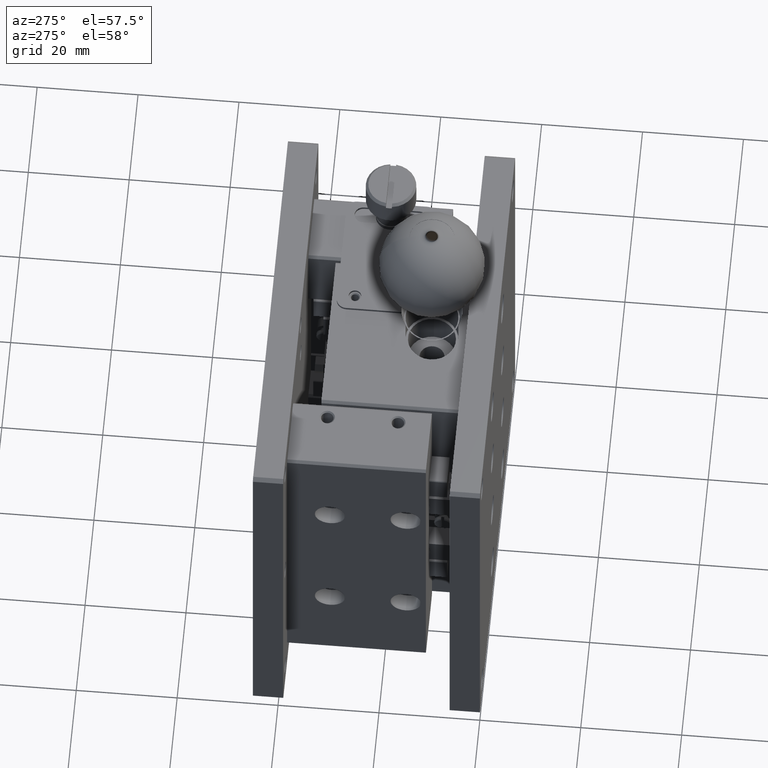
[diagram: clean part render]
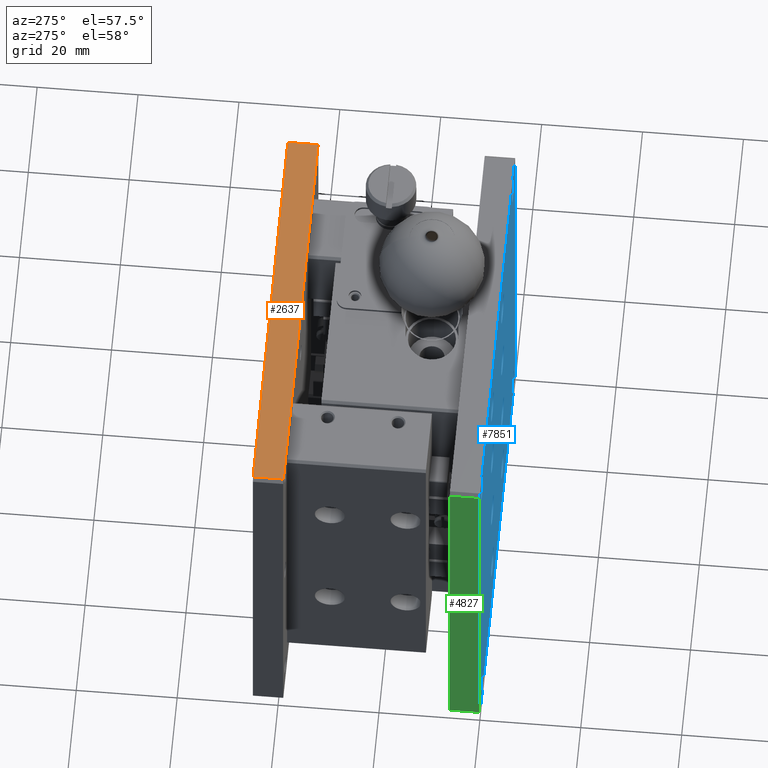
[diagram: same view with three faces highlighted in distinct colors, each labeled with its STEP entity id]
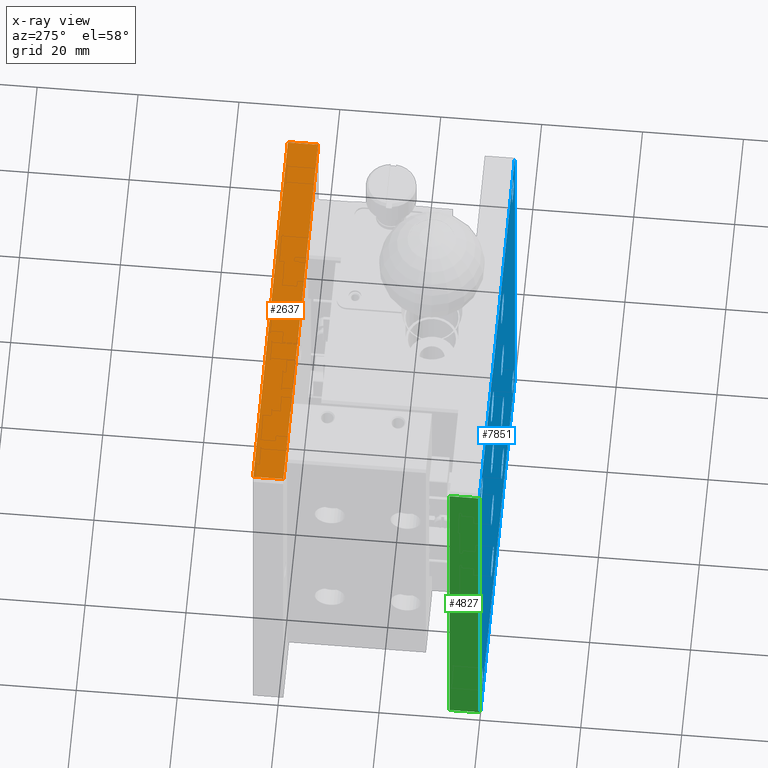
[diagram: x-ray of the same camera — body ghosted, the three highlighted faces saturated]
A machine part, auxiliary view with three faces highlighted in distinct colors.
The next image is the same camera in x-ray (body ghosted, the three faces saturated) — at least one of them is partly hidden behind the body in this view.
Their STEP definitions:

[orange] entity #2637 — the highlighted planar face has unit normal (0, 0, 1).
#125 = DIRECTION ( 'NONE',  ( -0.000000000000000000, 1.000000000000000000, 0.000000000000000000 ) ) ;
#212 = VECTOR ( 'NONE', #125, 1000.000000000000000 ) ;
#609 = VERTEX_POINT ( 'NONE', #3473 ) ;
#788 = AXIS2_PLACEMENT_3D ( 'NONE', #9421, #4760, #13947 ) ;
#954 = CARTESIAN_POINT ( 'NONE',  ( 0.7099999999999999645, 39.00000000000000000, 0.000000000000000000 ) ) ;
#1374 = CARTESIAN_POINT ( 'NONE',  ( 79.29000000000002046, 45.00000000000000000, -8.673617379884033500E-16 ) ) ;
#1547 = DIRECTION ( 'NONE',  ( 1.000000000000000000, 0.000000000000000000, -0.000000000000000000 ) ) ;
#2431 = EDGE_CURVE ( 'NONE', #13523, #13399, #7877, .T. ) ;
#2637 = ADVANCED_FACE ( 'NONE', ( #6156 ), #3921, .T. ) ;
#3473 = CARTESIAN_POINT ( 'NONE',  ( 79.29000000000002046, 39.00000000000000000, -1.734723475976806700E-15 ) ) ;
#3795 = LINE ( 'NONE', #7262, #5129 ) ;
#3921 = PLANE ( 'NONE',  #788 ) ;
#4760 = DIRECTION ( 'NONE',  ( 0.000000000000000000, 0.000000000000000000, 1.000000000000000000 ) ) ;
#5129 = VECTOR ( 'NONE', #1547, 1000.000000000000000 ) ;
#6156 = FACE_OUTER_BOUND ( 'NONE', #7513, .T. ) ;
#6431 = EDGE_CURVE ( 'NONE', #13399, #609, #6898, .T. ) ;
#6543 = EDGE_CURVE ( 'NONE', #609, #7089, #9941, .T. ) ;
#6898 = LINE ( 'NONE', #954, #7322 ) ;
#7089 = VERTEX_POINT ( 'NONE', #1374 ) ;
#7262 = CARTESIAN_POINT ( 'NONE',  ( 0.000000000000000000, 45.00000000000000000, 0.000000000000000000 ) ) ;
#7322 = VECTOR ( 'NONE', #12539, 1000.000000000000000 ) ;
#7513 = EDGE_LOOP ( 'NONE', ( #7957, #10814, #10708, #14134 ) ) ;
#7877 = LINE ( 'NONE', #13732, #10032 ) ;
#7957 = ORIENTED_EDGE ( 'NONE', *, *, #6431, .T. ) ;
#9421 = CARTESIAN_POINT ( 'NONE',  ( 0.7099999999999999645, 39.00000000000000000, 0.000000000000000000 ) ) ;
#9941 = LINE ( 'NONE', #14485, #212 ) ;
#10032 = VECTOR ( 'NONE', #14714, 1000.000000000000000 ) ;
#10221 = CARTESIAN_POINT ( 'NONE',  ( 0.7099999999999999645, 45.00000000000000000, 0.000000000000000000 ) ) ;
#10708 = ORIENTED_EDGE ( 'NONE', *, *, #11641, .F. ) ;
#10814 = ORIENTED_EDGE ( 'NONE', *, *, #6543, .T. ) ;
#10815 = CARTESIAN_POINT ( 'NONE',  ( 0.7099999999999999645, 39.00000000000000000, 0.000000000000000000 ) ) ;
#11641 = EDGE_CURVE ( 'NONE', #13523, #7089, #3795, .T. ) ;
#12539 = DIRECTION ( 'NONE',  ( 1.000000000000000000, 0.000000000000000000, -0.000000000000000000 ) ) ;
#13399 = VERTEX_POINT ( 'NONE', #10815 ) ;
#13523 = VERTEX_POINT ( 'NONE', #10221 ) ;
#13732 = CARTESIAN_POINT ( 'NONE',  ( 0.7099999999999999645, 39.00000000000000000, 0.000000000000000000 ) ) ;
#13947 = DIRECTION ( 'NONE',  ( 1.000000000000000000, 0.000000000000000000, -0.000000000000000000 ) ) ;
#14134 = ORIENTED_EDGE ( 'NONE', *, *, #2431, .T. ) ;
#14485 = CARTESIAN_POINT ( 'NONE',  ( 79.29000000000000625, 39.00000000000000000, 0.000000000000000000 ) ) ;
#14714 = DIRECTION ( 'NONE',  ( 0.000000000000000000, -1.000000000000000000, -0.000000000000000000 ) ) ;

[blue] entity #7851 — the highlighted planar face has unit normal (0, 1, 0).
#31 = CARTESIAN_POINT ( 'NONE',  ( 5.000000000000000000, 0.000000000000000000, -75.00000000000000000 ) ) ;
#76 = VERTEX_POINT ( 'NONE', #8025 ) ;
#80 = FACE_BOUND ( 'NONE', #5642, .T. ) ;
#112 = CARTESIAN_POINT ( 'NONE',  ( 80.00000000000001421, -1.951563910473907981E-15, -79.29000000000000625 ) ) ;
#155 = DIRECTION ( 'NONE',  ( 0.000000000000000000, 0.000000000000000000, -1.000000000000000000 ) ) ;
#244 = CARTESIAN_POINT ( 'NONE',  ( 28.50000000000000000, 0.000000000000000000, -11.50000000000000000 ) ) ;
#256 = EDGE_LOOP ( 'NONE', ( #12652, #12485, #8798, #14278, #14574, #9048, #13954, #5961 ) ) ;
#297 = CIRCLE ( 'NONE', #11677, 2.250000000000001776 ) ;
#410 = CARTESIAN_POINT ( 'NONE',  ( 5.000000000000000000, 0.000000000000000000, -7.250000000000009770 ) ) ;
#489 = ORIENTED_EDGE ( 'NONE', *, *, #11950, .F. ) ;
#500 = AXIS2_PLACEMENT_3D ( 'NONE', #6449, #3256, #10976 ) ;
#590 = VERTEX_POINT ( 'NONE', #3061 ) ;
#667 = CARTESIAN_POINT ( 'NONE',  ( 28.50000000000000000, 0.000000000000000000, -14.49999999999999822 ) ) ;
#711 = AXIS2_PLACEMENT_3D ( 'NONE', #1116, #10184, #10396 ) ;
#857 = AXIS2_PLACEMENT_3D ( 'NONE', #1249, #2289, #6899 ) ;
#958 = VERTEX_POINT ( 'NONE', #10110 ) ;
#1079 = CARTESIAN_POINT ( 'NONE',  ( 5.000000000000000000, 0.000000000000000000, -5.000000000000009770 ) ) ;
#1116 = CARTESIAN_POINT ( 'NONE',  ( 0.000000000000000000, 0.000000000000000000, 0.000000000000000000 ) ) ;
#1200 = FACE_BOUND ( 'NONE', #3944, .T. ) ;
#1234 = AXIS2_PLACEMENT_3D ( 'NONE', #14615, #2954, #13496 ) ;
#1249 = CARTESIAN_POINT ( 'NONE',  ( 28.50000000000000000, 0.000000000000000000, -49.50000000000000000 ) ) ;
#1330 = EDGE_CURVE ( 'NONE', #3357, #3357, #297, .T. ) ;
#1333 = FACE_BOUND ( 'NONE', #14443, .T. ) ;
#1416 = ORIENTED_EDGE ( 'NONE', *, *, #13542, .F. ) ;
#1786 = VERTEX_POINT ( 'NONE', #5416 ) ;
#1898 = LINE ( 'NONE', #4207, #4032 ) ;
#2119 = EDGE_LOOP ( 'NONE', ( #10125 ) ) ;
#2125 = ORIENTED_EDGE ( 'NONE', *, *, #3342, .F. ) ;
#2240 = FACE_OUTER_BOUND ( 'NONE', #256, .T. ) ;
#2289 = DIRECTION ( 'NONE',  ( 0.000000000000000000, -1.000000000000000000, 0.000000000000000000 ) ) ;
#2322 = CARTESIAN_POINT ( 'NONE',  ( 51.50000000000000711, 0.000000000000000000, -71.50000000000001421 ) ) ;
#2457 = FACE_BOUND ( 'NONE', #12326, .T. ) ;
#2592 = CIRCLE ( 'NONE', #9944, 2.250000000000000444 ) ;
#2772 = VERTEX_POINT ( 'NONE', #5189 ) ;
#2954 = DIRECTION ( 'NONE',  ( 0.000000000000000000, -1.000000000000000000, 0.000000000000000000 ) ) ;
#3061 = CARTESIAN_POINT ( 'NONE',  ( 28.50000000000000000, 0.000000000000000000, -52.50000000000000711 ) ) ;
#3179 = VECTOR ( 'NONE', #13330, 1000.000000000000000 ) ;
#3187 = DIRECTION ( 'NONE',  ( 0.000000000000000000, 0.000000000000000000, -1.000000000000000000 ) ) ;
#3256 = DIRECTION ( 'NONE',  ( 0.000000000000000000, -1.000000000000000000, 0.000000000000000000 ) ) ;
#3312 = CARTESIAN_POINT ( 'NONE',  ( 0.000000000000000000, 0.000000000000000000, 0.000000000000000000 ) ) ;
#3337 = AXIS2_PLACEMENT_3D ( 'NONE', #31, #13686, #8123 ) ;
#3342 = EDGE_CURVE ( 'NONE', #6164, #6164, #9921, .T. ) ;
#3357 = VERTEX_POINT ( 'NONE', #9137 ) ;
#3393 = CARTESIAN_POINT ( 'NONE',  ( 51.50000000000000711, 0.000000000000000000, -11.50000000000000000 ) ) ;
#3467 = DIRECTION ( 'NONE',  ( 0.000000000000000000, -1.000000000000000000, 0.000000000000000000 ) ) ;
#3567 = VECTOR ( 'NONE', #5543, 999.9999999999998863 ) ;
#3598 = VECTOR ( 'NONE', #8091, 1000.000000000000000 ) ;
#3675 = DIRECTION ( 'NONE',  ( 0.7071067811865500152, 0.000000000000000000, -0.7071067811865450192 ) ) ;
#3721 = FACE_BOUND ( 'NONE', #11971, .T. ) ;
#3805 = DIRECTION ( 'NONE',  ( -0.7071067811865505703, 0.000000000000000000, -0.7071067811865444641 ) ) ;
#3944 = EDGE_LOOP ( 'NONE', ( #12634 ) ) ;
#4032 = VECTOR ( 'NONE', #4138, 1000.000000000000114 ) ;
#4091 = ORIENTED_EDGE ( 'NONE', *, *, #7447, .F. ) ;
#4138 = DIRECTION ( 'NONE',  ( 0.7071067811865474617, 0.000000000000000000, 0.7071067811865474617 ) ) ;
#4170 = DIRECTION ( 'NONE',  ( 0.000000000000000000, 0.000000000000000000, -1.000000000000000000 ) ) ;
#4207 = CARTESIAN_POINT ( 'NONE',  ( 80.00000000000000000, -3.469446951953614189E-15, -79.29000000000000625 ) ) ;
#4423 = VERTEX_POINT ( 'NONE', #13613 ) ;
#4540 = CARTESIAN_POINT ( 'NONE',  ( 80.00000000000000000, 0.000000000000000000, 0.000000000000000000 ) ) ;
#4658 = CARTESIAN_POINT ( 'NONE',  ( 51.50000000000000711, 0.000000000000000000, -49.50000000000000000 ) ) ;
#4704 = VERTEX_POINT ( 'NONE', #2322 ) ;
#4729 = EDGE_LOOP ( 'NONE', ( #2125 ) ) ;
#4775 = CARTESIAN_POINT ( 'NONE',  ( 28.50000000000000000, 0.000000000000000000, -30.50000000000000000 ) ) ;
#4790 = DIRECTION ( 'NONE',  ( 0.000000000000000000, 0.000000000000000000, -1.000000000000000000 ) ) ;
#4957 = AXIS2_PLACEMENT_3D ( 'NONE', #4658, #13637, #14545 ) ;
#5189 = CARTESIAN_POINT ( 'NONE',  ( 79.29000000000002046, 0.000000000000000000, -8.673617379884033500E-16 ) ) ;
#5209 = LINE ( 'NONE', #9438, #9286 ) ;
#5416 = CARTESIAN_POINT ( 'NONE',  ( -1.897353801849632760E-16, 0.000000000000000000, -79.29000000000000625 ) ) ;
#5531 = CARTESIAN_POINT ( 'NONE',  ( 28.50000000000000000, 0.000000000000000000, -68.50000000000000000 ) ) ;
#5543 = DIRECTION ( 'NONE',  ( -0.7071067811865420216, 0.000000000000000000, 0.7071067811865531239 ) ) ;
#5585 = VERTEX_POINT ( 'NONE', #7730 ) ;
#5642 = EDGE_LOOP ( 'NONE', ( #9046 ) ) ;
#5661 = FACE_BOUND ( 'NONE', #14580, .T. ) ;
#5740 = VERTEX_POINT ( 'NONE', #8316 ) ;
#5874 = FACE_BOUND ( 'NONE', #7838, .T. ) ;
#5953 = CARTESIAN_POINT ( 'NONE',  ( 80.00000000000000000, 0.000000000000000000, -0.7099999999999998535 ) ) ;
#5961 = ORIENTED_EDGE ( 'NONE', *, *, #7044, .F. ) ;
#6164 = VERTEX_POINT ( 'NONE', #8603 ) ;
#6423 = VERTEX_POINT ( 'NONE', #10952 ) ;
#6449 = CARTESIAN_POINT ( 'NONE',  ( 75.00000000000000000, 0.000000000000000000, -5.000000000000000000 ) ) ;
#6481 = VERTEX_POINT ( 'NONE', #13365 ) ;
#6573 = VECTOR ( 'NONE', #3675, 1000.000000000000000 ) ;
#6593 = CIRCLE ( 'NONE', #8488, 3.000000000000002665 ) ;
#6767 = FACE_BOUND ( 'NONE', #4729, .T. ) ;
#6847 = EDGE_CURVE ( 'NONE', #8006, #8006, #2592, .T. ) ;
#6894 = VERTEX_POINT ( 'NONE', #13866 ) ;
#6899 = DIRECTION ( 'NONE',  ( 0.000000000000000000, 0.000000000000000000, -1.000000000000000000 ) ) ;
#6935 = EDGE_CURVE ( 'NONE', #6894, #6894, #8526, .T. ) ;
#7000 = CARTESIAN_POINT ( 'NONE',  ( 28.50000000000000000, 0.000000000000000000, -33.50000000000000000 ) ) ;
#7036 = VERTEX_POINT ( 'NONE', #112 ) ;
#7044 = EDGE_CURVE ( 'NONE', #1786, #7391, #10507, .T. ) ;
#7054 = PLANE ( 'NONE',  #711 ) ;
#7340 = EDGE_CURVE ( 'NONE', #11702, #2772, #11248, .T. ) ;
#7391 = VERTEX_POINT ( 'NONE', #11468 ) ;
#7447 = EDGE_CURVE ( 'NONE', #6423, #6423, #13524, .T. ) ;
#7730 = CARTESIAN_POINT ( 'NONE',  ( 51.50000000000000711, 0.000000000000000000, -52.50000000000000711 ) ) ;
#7740 = DIRECTION ( 'NONE',  ( -1.000000000000000000, -0.000000000000000000, 0.000000000000000000 ) ) ;
#7768 = DIRECTION ( 'NONE',  ( 0.000000000000000000, 0.000000000000000000, -1.000000000000000000 ) ) ;
#7838 = EDGE_LOOP ( 'NONE', ( #10397 ) ) ;
#7851 = ADVANCED_FACE ( 'NONE', ( #2240, #1333, #12635, #7956, #9294, #1200, #2457, #5661, #80, #5874, #3721, #8172, #6767 ), #7054, .F. ) ;
#7878 = CIRCLE ( 'NONE', #1234, 3.000000000000002665 ) ;
#7880 = CARTESIAN_POINT ( 'NONE',  ( 75.00000000000000000, 0.000000000000000000, -75.00000000000000000 ) ) ;
#7917 = DIRECTION ( 'NONE',  ( 0.000000000000000000, -1.000000000000000000, 0.000000000000000000 ) ) ;
#7956 = FACE_BOUND ( 'NONE', #12704, .T. ) ;
#8006 = VERTEX_POINT ( 'NONE', #410 ) ;
#8025 = CARTESIAN_POINT ( 'NONE',  ( 28.50000000000000000, 0.000000000000000000, -71.50000000000001421 ) ) ;
#8091 = DIRECTION ( 'NONE',  ( -0.000000000000000000, 0.000000000000000000, -1.000000000000000000 ) ) ;
#8123 = DIRECTION ( 'NONE',  ( 0.000000000000000000, 0.000000000000000000, -1.000000000000000000 ) ) ;
#8172 = FACE_BOUND ( 'NONE', #2119, .T. ) ;
#8176 = DIRECTION ( 'NONE',  ( 0.000000000000000000, -1.000000000000000000, 0.000000000000000000 ) ) ;
#8316 = CARTESIAN_POINT ( 'NONE',  ( 0.7100000000000000755, -1.951563910473907981E-15, 8.131516293641283255E-17 ) ) ;
#8405 = EDGE_CURVE ( 'NONE', #958, #7036, #1898, .T. ) ;
#8488 = AXIS2_PLACEMENT_3D ( 'NONE', #5531, #14660, #155 ) ;
#8495 = AXIS2_PLACEMENT_3D ( 'NONE', #3393, #7917, #7768 ) ;
#8526 = CIRCLE ( 'NONE', #10177, 3.000000000000002665 ) ;
#8603 = CARTESIAN_POINT ( 'NONE',  ( 51.50000000000000711, 0.000000000000000000, -14.49999999999999822 ) ) ;
#8727 = CARTESIAN_POINT ( 'NONE',  ( 79.29000000000000625, 0.000000000000000000, 0.000000000000000000 ) ) ;
#8798 = ORIENTED_EDGE ( 'NONE', *, *, #8405, .T. ) ;
#8826 = CARTESIAN_POINT ( 'NONE',  ( 51.50000000000000711, 0.000000000000000000, -30.50000000000000000 ) ) ;
#8865 = LINE ( 'NONE', #12269, #12276 ) ;
#9035 = LINE ( 'NONE', #13843, #6573 ) ;
#9046 = ORIENTED_EDGE ( 'NONE', *, *, #9877, .F. ) ;
#9048 = ORIENTED_EDGE ( 'NONE', *, *, #10998, .F. ) ;
#9137 = CARTESIAN_POINT ( 'NONE',  ( 75.00000000000000000, 0.000000000000000000, -77.25000000000000000 ) ) ;
#9148 = EDGE_CURVE ( 'NONE', #14592, #14592, #14497, .T. ) ;
#9191 = EDGE_CURVE ( 'NONE', #5740, #7391, #5209, .T. ) ;
#9223 = ORIENTED_EDGE ( 'NONE', *, *, #1330, .F. ) ;
#9286 = VECTOR ( 'NONE', #3805, 1000.000000000000114 ) ;
#9294 = FACE_BOUND ( 'NONE', #13204, .T. ) ;
#9398 = DIRECTION ( 'NONE',  ( 0.000000000000000000, -0.000000000000000000, 1.000000000000000000 ) ) ;
#9438 = CARTESIAN_POINT ( 'NONE',  ( 0.000000000000000000, -3.469446951953614189E-15, -0.7099999999999939693 ) ) ;
#9477 = CARTESIAN_POINT ( 'NONE',  ( 0.000000000000000000, 0.000000000000000000, 0.000000000000000000 ) ) ;
#9486 = EDGE_CURVE ( 'NONE', #11702, #7036, #11426, .T. ) ;
#9639 = CIRCLE ( 'NONE', #857, 3.000000000000002665 ) ;
#9724 = EDGE_CURVE ( 'NONE', #4423, #4423, #12613, .T. ) ;
#9877 = EDGE_CURVE ( 'NONE', #4704, #4704, #7878, .T. ) ;
#9921 = CIRCLE ( 'NONE', #8495, 2.999999999999999112 ) ;
#9944 = AXIS2_PLACEMENT_3D ( 'NONE', #1079, #3467, #13492 ) ;
#9982 = AXIS2_PLACEMENT_3D ( 'NONE', #4775, #8176, #11376 ) ;
#10110 = CARTESIAN_POINT ( 'NONE',  ( 79.29000000000000625, -1.951563910473907981E-15, -80.00000000000000000 ) ) ;
#10125 = ORIENTED_EDGE ( 'NONE', *, *, #9148, .F. ) ;
#10177 = AXIS2_PLACEMENT_3D ( 'NONE', #8826, #13635, #3187 ) ;
#10184 = DIRECTION ( 'NONE',  ( 0.000000000000000000, 1.000000000000000000, 0.000000000000000000 ) ) ;
#10396 = DIRECTION ( 'NONE',  ( 0.000000000000000000, -0.000000000000000000, 1.000000000000000000 ) ) ;
#10397 = ORIENTED_EDGE ( 'NONE', *, *, #14326, .F. ) ;
#10507 = LINE ( 'NONE', #9477, #11853 ) ;
#10952 = CARTESIAN_POINT ( 'NONE',  ( 5.000000000000000000, 0.000000000000000000, -77.25000000000000000 ) ) ;
#10976 = DIRECTION ( 'NONE',  ( 0.000000000000000000, 0.000000000000000000, -1.000000000000000000 ) ) ;
#10998 = EDGE_CURVE ( 'NONE', #5740, #2772, #13401, .T. ) ;
#10999 = DIRECTION ( 'NONE',  ( 0.000000000000000000, -1.000000000000000000, 0.000000000000000000 ) ) ;
#11004 = VERTEX_POINT ( 'NONE', #667 ) ;
#11248 = LINE ( 'NONE', #8727, #3567 ) ;
#11250 = EDGE_LOOP ( 'NONE', ( #11252 ) ) ;
#11252 = ORIENTED_EDGE ( 'NONE', *, *, #6847, .F. ) ;
#11310 = DIRECTION ( 'NONE',  ( 0.000000000000000000, -1.000000000000000000, 0.000000000000000000 ) ) ;
#11376 = DIRECTION ( 'NONE',  ( 0.000000000000000000, 0.000000000000000000, -1.000000000000000000 ) ) ;
#11426 = LINE ( 'NONE', #4540, #3598 ) ;
#11468 = CARTESIAN_POINT ( 'NONE',  ( 0.000000000000000000, -1.951563910473907981E-15, -0.7099999999999925260 ) ) ;
#11677 = AXIS2_PLACEMENT_3D ( 'NONE', #7880, #10999, #4170 ) ;
#11702 = VERTEX_POINT ( 'NONE', #5953 ) ;
#11809 = CIRCLE ( 'NONE', #4957, 3.000000000000002665 ) ;
#11853 = VECTOR ( 'NONE', #9398, 1000.000000000000000 ) ;
#11950 = EDGE_CURVE ( 'NONE', #590, #590, #9639, .T. ) ;
#11971 = EDGE_LOOP ( 'NONE', ( #489 ) ) ;
#12269 = CARTESIAN_POINT ( 'NONE',  ( 0.000000000000000000, 0.000000000000000000, -80.00000000000000000 ) ) ;
#12276 = VECTOR ( 'NONE', #7740, 1000.000000000000000 ) ;
#12326 = EDGE_LOOP ( 'NONE', ( #12423 ) ) ;
#12371 = EDGE_CURVE ( 'NONE', #1786, #6481, #9035, .T. ) ;
#12404 = EDGE_CURVE ( 'NONE', #11004, #11004, #14156, .T. ) ;
#12409 = ORIENTED_EDGE ( 'NONE', *, *, #9724, .F. ) ;
#12423 = ORIENTED_EDGE ( 'NONE', *, *, #6935, .F. ) ;
#12485 = ORIENTED_EDGE ( 'NONE', *, *, #12650, .F. ) ;
#12492 = AXIS2_PLACEMENT_3D ( 'NONE', #244, #11310, #4790 ) ;
#12613 = CIRCLE ( 'NONE', #500, 2.250000000000000444 ) ;
#12634 = ORIENTED_EDGE ( 'NONE', *, *, #12404, .F. ) ;
#12635 = FACE_BOUND ( 'NONE', #11250, .T. ) ;
#12650 = EDGE_CURVE ( 'NONE', #958, #6481, #8865, .T. ) ;
#12652 = ORIENTED_EDGE ( 'NONE', *, *, #12371, .T. ) ;
#12704 = EDGE_LOOP ( 'NONE', ( #4091 ) ) ;
#13204 = EDGE_LOOP ( 'NONE', ( #9223 ) ) ;
#13330 = DIRECTION ( 'NONE',  ( 1.000000000000000000, 0.000000000000000000, -0.000000000000000000 ) ) ;
#13365 = CARTESIAN_POINT ( 'NONE',  ( 0.7099999999999988542, 0.000000000000000000, -80.00000000000000000 ) ) ;
#13401 = LINE ( 'NONE', #3312, #3179 ) ;
#13492 = DIRECTION ( 'NONE',  ( 0.000000000000000000, 0.000000000000000000, -1.000000000000000000 ) ) ;
#13496 = DIRECTION ( 'NONE',  ( 0.000000000000000000, 0.000000000000000000, -1.000000000000000000 ) ) ;
#13524 = CIRCLE ( 'NONE', #3337, 2.250000000000001776 ) ;
#13542 = EDGE_CURVE ( 'NONE', #5585, #5585, #11809, .T. ) ;
#13613 = CARTESIAN_POINT ( 'NONE',  ( 75.00000000000000000, 0.000000000000000000, -7.250000000000000000 ) ) ;
#13635 = DIRECTION ( 'NONE',  ( 0.000000000000000000, -1.000000000000000000, 0.000000000000000000 ) ) ;
#13637 = DIRECTION ( 'NONE',  ( 0.000000000000000000, -1.000000000000000000, 0.000000000000000000 ) ) ;
#13686 = DIRECTION ( 'NONE',  ( 0.000000000000000000, -1.000000000000000000, 0.000000000000000000 ) ) ;
#13843 = CARTESIAN_POINT ( 'NONE',  ( 0.7099999999999939693, 0.000000000000000000, -80.00000000000000000 ) ) ;
#13866 = CARTESIAN_POINT ( 'NONE',  ( 51.50000000000000711, 0.000000000000000000, -33.50000000000000000 ) ) ;
#13954 = ORIENTED_EDGE ( 'NONE', *, *, #9191, .T. ) ;
#14156 = CIRCLE ( 'NONE', #12492, 2.999999999999999112 ) ;
#14278 = ORIENTED_EDGE ( 'NONE', *, *, #9486, .F. ) ;
#14326 = EDGE_CURVE ( 'NONE', #76, #76, #6593, .T. ) ;
#14443 = EDGE_LOOP ( 'NONE', ( #12409 ) ) ;
#14497 = CIRCLE ( 'NONE', #9982, 3.000000000000002665 ) ;
#14545 = DIRECTION ( 'NONE',  ( 0.000000000000000000, 0.000000000000000000, -1.000000000000000000 ) ) ;
#14574 = ORIENTED_EDGE ( 'NONE', *, *, #7340, .T. ) ;
#14580 = EDGE_LOOP ( 'NONE', ( #1416 ) ) ;
#14592 = VERTEX_POINT ( 'NONE', #7000 ) ;
#14615 = CARTESIAN_POINT ( 'NONE',  ( 51.50000000000000711, 0.000000000000000000, -68.50000000000000000 ) ) ;
#14660 = DIRECTION ( 'NONE',  ( 0.000000000000000000, -1.000000000000000000, 0.000000000000000000 ) ) ;

[green] entity #4827 — the highlighted planar face has unit normal (1, 0, 0).
#964 = CARTESIAN_POINT ( 'NONE',  ( 0.000000000000000000, 6.000000000000000000, -0.7099999999999884182 ) ) ;
#1296 = EDGE_CURVE ( 'NONE', #1786, #6400, #9440, .T. ) ;
#1341 = EDGE_CURVE ( 'NONE', #5371, #7391, #3209, .T. ) ;
#1363 = FACE_OUTER_BOUND ( 'NONE', #1453, .T. ) ;
#1453 = EDGE_LOOP ( 'NONE', ( #5954, #13489, #2675, #5802 ) ) ;
#1786 = VERTEX_POINT ( 'NONE', #5416 ) ;
#2363 = CARTESIAN_POINT ( 'NONE',  ( -1.531435568635775013E-15, 6.000000000000000000, -79.29000000000000625 ) ) ;
#2675 = ORIENTED_EDGE ( 'NONE', *, *, #1296, .F. ) ;
#2779 = LINE ( 'NONE', #7308, #9713 ) ;
#3140 = CARTESIAN_POINT ( 'NONE',  ( 0.000000000000000000, 6.000000000000000000, -0.7099999999999925260 ) ) ;
#3209 = LINE ( 'NONE', #964, #8604 ) ;
#4827 = ADVANCED_FACE ( 'NONE', ( #1363 ), #10430, .F. ) ;
#5371 = VERTEX_POINT ( 'NONE', #3140 ) ;
#5416 = CARTESIAN_POINT ( 'NONE',  ( -1.897353801849632760E-16, 0.000000000000000000, -79.29000000000000625 ) ) ;
#5580 = CARTESIAN_POINT ( 'NONE',  ( 0.000000000000000000, 6.000000000000000000, -79.29000000000000625 ) ) ;
#5802 = ORIENTED_EDGE ( 'NONE', *, *, #7044, .T. ) ;
#5908 = DIRECTION ( 'NONE',  ( 0.000000000000000000, 0.000000000000000000, -1.000000000000000000 ) ) ;
#5954 = ORIENTED_EDGE ( 'NONE', *, *, #1341, .F. ) ;
#6208 = DIRECTION ( 'NONE',  ( -0.000000000000000000, -0.000000000000000000, 1.000000000000000000 ) ) ;
#6400 = VERTEX_POINT ( 'NONE', #2363 ) ;
#7044 = EDGE_CURVE ( 'NONE', #1786, #7391, #10507, .T. ) ;
#7232 = EDGE_CURVE ( 'NONE', #6400, #5371, #2779, .T. ) ;
#7308 = CARTESIAN_POINT ( 'NONE',  ( 0.000000000000000000, 6.000000000000000000, -79.29000000000000625 ) ) ;
#7391 = VERTEX_POINT ( 'NONE', #11468 ) ;
#7660 = DIRECTION ( 'NONE',  ( 0.000000000000000000, -1.000000000000000000, -0.000000000000000000 ) ) ;
#8063 = DIRECTION ( 'NONE',  ( 1.000000000000000000, 0.000000000000000000, 0.000000000000000000 ) ) ;
#8604 = VECTOR ( 'NONE', #7660, 1000.000000000000000 ) ;
#9398 = DIRECTION ( 'NONE',  ( 0.000000000000000000, -0.000000000000000000, 1.000000000000000000 ) ) ;
#9440 = LINE ( 'NONE', #5580, #13104 ) ;
#9477 = CARTESIAN_POINT ( 'NONE',  ( 0.000000000000000000, 0.000000000000000000, 0.000000000000000000 ) ) ;
#9713 = VECTOR ( 'NONE', #6208, 1000.000000000000000 ) ;
#10430 = PLANE ( 'NONE',  #13724 ) ;
#10507 = LINE ( 'NONE', #9477, #11853 ) ;
#11468 = CARTESIAN_POINT ( 'NONE',  ( 0.000000000000000000, -1.951563910473907981E-15, -0.7099999999999925260 ) ) ;
#11853 = VECTOR ( 'NONE', #9398, 1000.000000000000000 ) ;
#13104 = VECTOR ( 'NONE', #13302, 1000.000000000000000 ) ;
#13302 = DIRECTION ( 'NONE',  ( -0.000000000000000000, 1.000000000000000000, 0.000000000000000000 ) ) ;
#13489 = ORIENTED_EDGE ( 'NONE', *, *, #7232, .F. ) ;
#13724 = AXIS2_PLACEMENT_3D ( 'NONE', #13849, #8063, #5908 ) ;
#13849 = CARTESIAN_POINT ( 'NONE',  ( 0.000000000000000000, 6.000000000000000000, -79.29000000000000625 ) ) ;